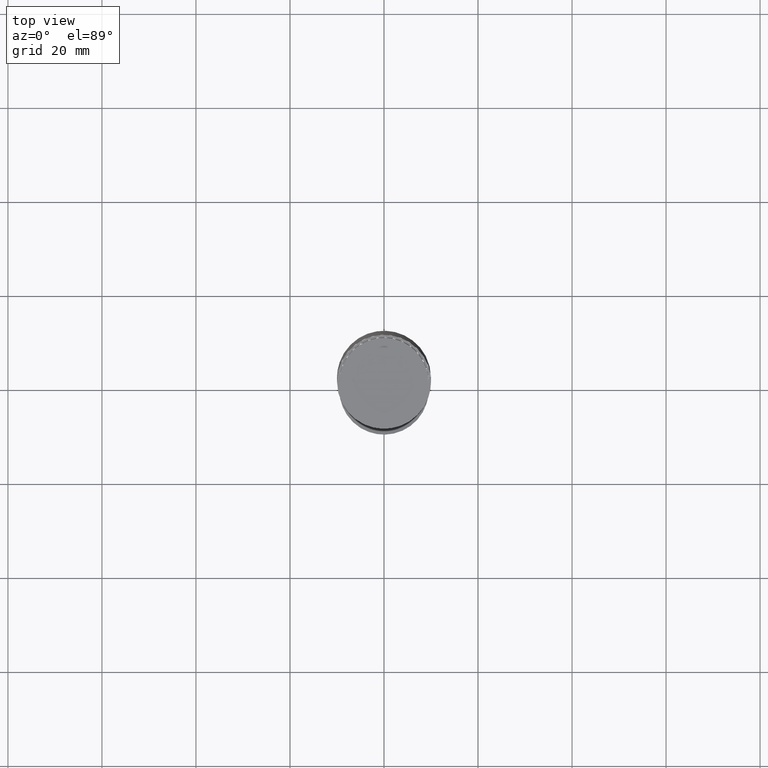
[diagram: clean part render]
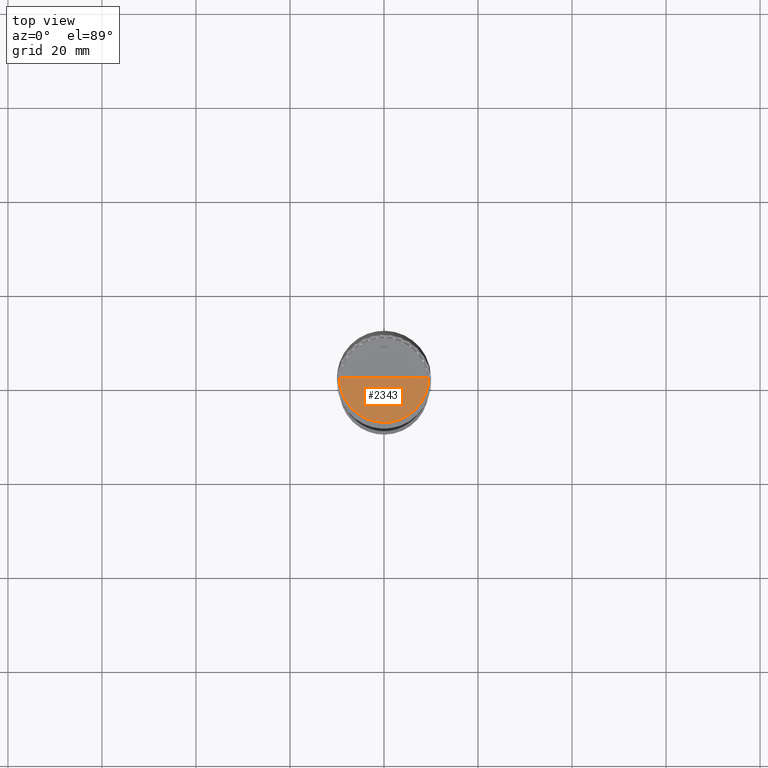
[diagram: same view with one face highlighted and labeled with its STEP entity id]
A machine part, top view. The second image highlights one B-rep face of the part: STEP entity #2343.
In plain terms, the highlighted face is a freeform B-spline surface patch.
Its self-contained STEP definition (entity closure, byte-faithful):
#1946=CARTESIAN_POINT('',(9.5,0.0,50.0));
#1950=CARTESIAN_POINT('',(-9.5,0.0,50.0));
#1951=CARTESIAN_POINT('',(0.0,0.0,50.0));
#1964=CARTESIAN_POINT('',(-9.5,-9.5,50.0));
#1965=CARTESIAN_POINT('',(0.0,-9.5,50.0));
#1966=CARTESIAN_POINT('',(9.5,-9.5,50.0));
#2328=(
BOUNDED_SURFACE()
B_SPLINE_SURFACE(1,2,(
(#1950,#1964,#1965,#1966,#1946),
(#1951,#1951,#1951,#1951,#1951)
), .UNSPECIFIED.,.F.,.F.,.F.)
B_SPLINE_SURFACE_WITH_KNOTS((2,2),(3,2,3),(
0.0,1.0),(
0.0,0.5,1.0), .UNSPECIFIED.)
GEOMETRIC_REPRESENTATION_ITEM()
RATIONAL_B_SPLINE_SURFACE(((1.0,0.707106781187,1.0,0.707106781187,1.0),
(1.0,0.707106781187,1.0,0.707106781187,1.0)
))
REPRESENTATION_ITEM('')
SURFACE()
);
#2329=(
BOUNDED_CURVE()
B_SPLINE_CURVE(2,(#1946,#1966,#1965,#1964,#1950),.UNSPECIFIED.,.F.,.F.)
B_SPLINE_CURVE_WITH_KNOTS((3,2,3),
(0.0,0.5,1.0),.UNSPECIFIED.)
CURVE()
GEOMETRIC_REPRESENTATION_ITEM()
RATIONAL_B_SPLINE_CURVE((1.0,0.707106781187,1.0,0.707106781187,1.0))
REPRESENTATION_ITEM('')
);
#2330=(
BOUNDED_CURVE()
B_SPLINE_CURVE(1,(#1950,#1951),.UNSPECIFIED.,.F.,.F.)
B_SPLINE_CURVE_WITH_KNOTS((2,2),
(0.0,1.0),.UNSPECIFIED.)
CURVE()
GEOMETRIC_REPRESENTATION_ITEM()
RATIONAL_B_SPLINE_CURVE((1.0,1.0))
REPRESENTATION_ITEM('')
);
#2331=(
BOUNDED_CURVE()
B_SPLINE_CURVE(1,(#1951,#1946),.UNSPECIFIED.,.F.,.F.)
B_SPLINE_CURVE_WITH_KNOTS((2,2),
(0.0,1.0),.UNSPECIFIED.)
CURVE()
GEOMETRIC_REPRESENTATION_ITEM()
RATIONAL_B_SPLINE_CURVE((1.0,1.0))
REPRESENTATION_ITEM('')
);
#2332=VERTEX_POINT('',#1946);
#2333=VERTEX_POINT('',#1950);
#2334=VERTEX_POINT('',#1951);
#2335=EDGE_CURVE('',#2332,#2333,#2329,.T.);
#2336=EDGE_CURVE('',#2333,#2334,#2330,.T.);
#2337=EDGE_CURVE('',#2334,#2332,#2331,.T.);
#2338=ORIENTED_EDGE('',*,*,#2335,.T.);
#2339=ORIENTED_EDGE('',*,*,#2336,.T.);
#2340=ORIENTED_EDGE('',*,*,#2337,.T.);
#2341=EDGE_LOOP('',(#2338,#2339,#2340));
#2342=FACE_OUTER_BOUND('',#2341,.T.);
#2343=ADVANCED_FACE('',(#2342),#2328,.T.);